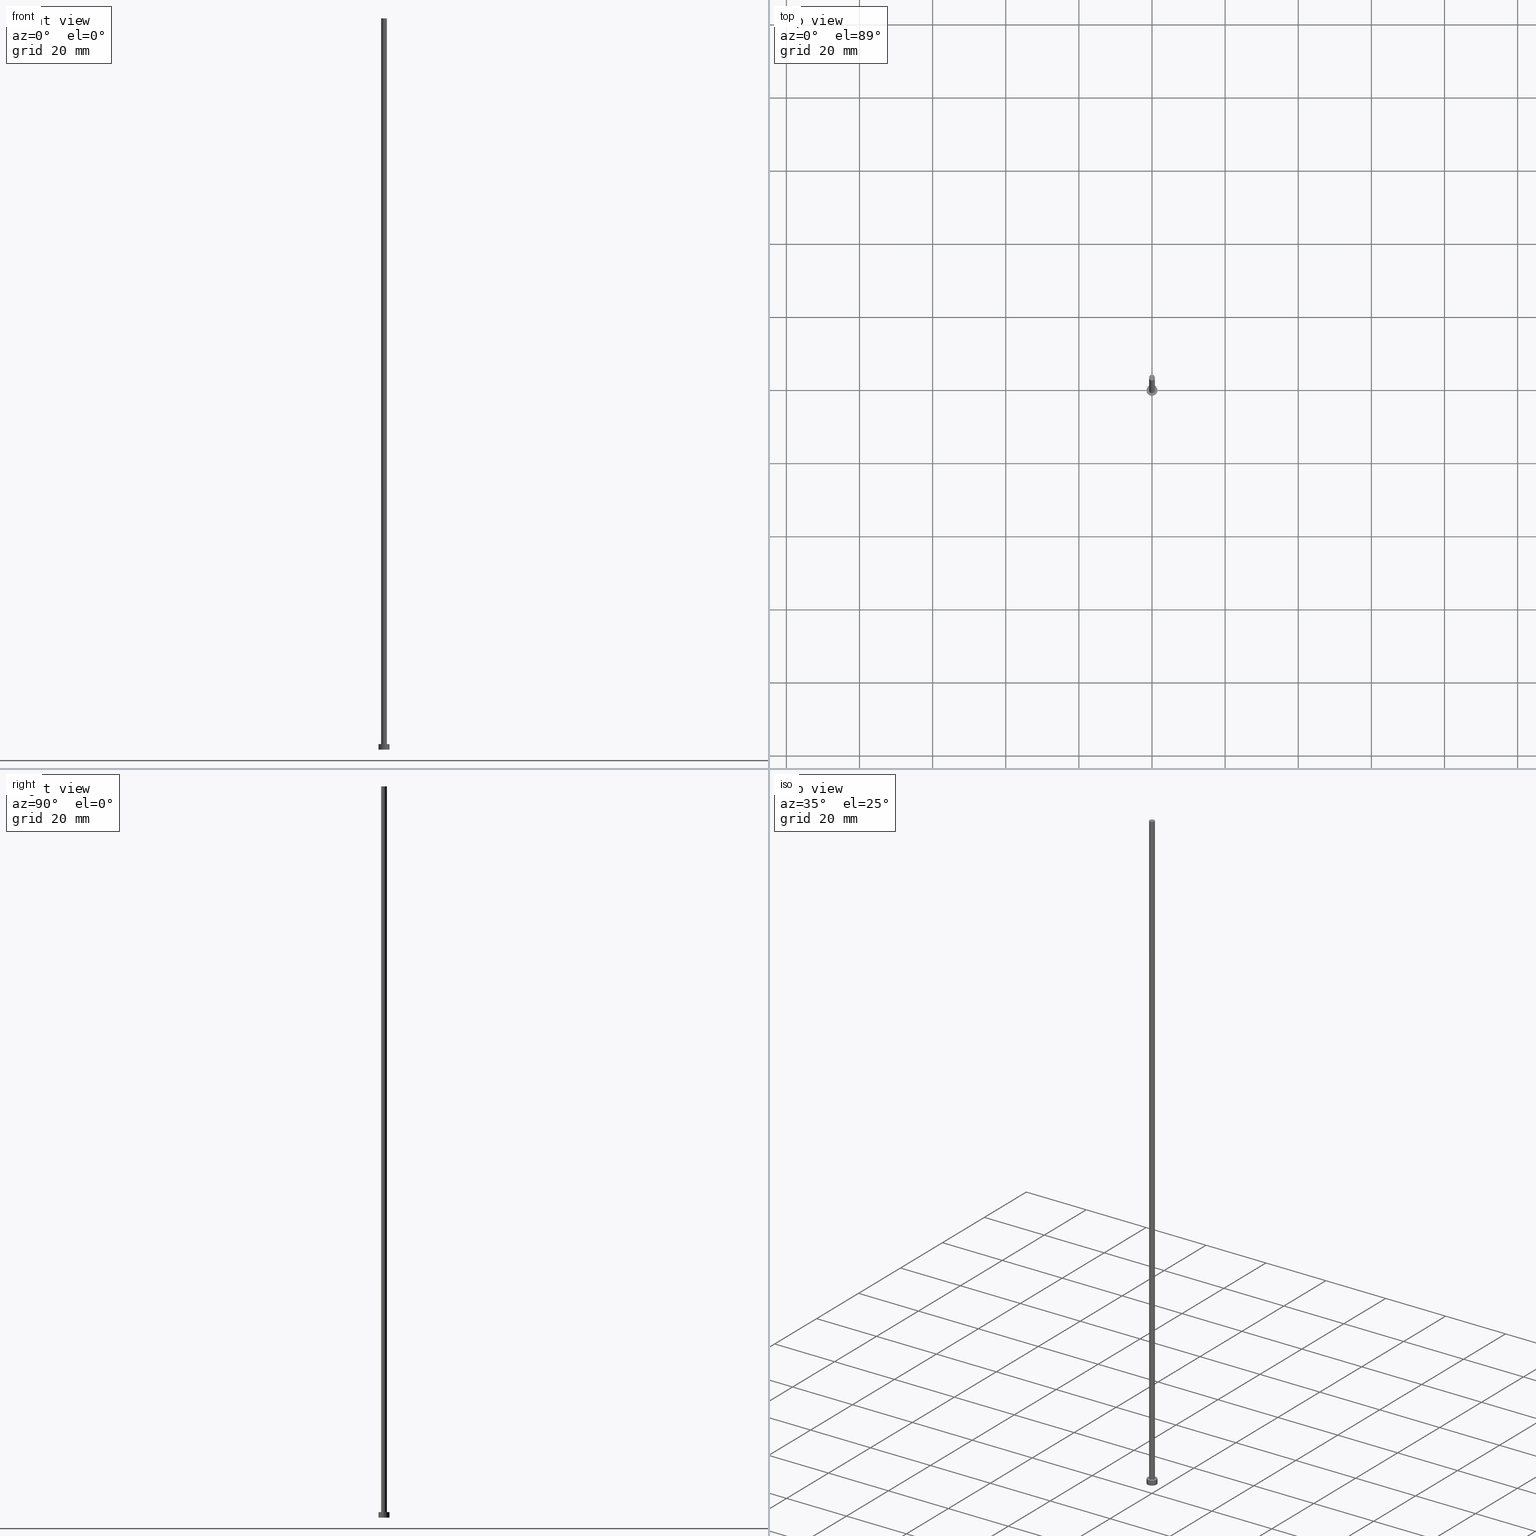
[diagram: canonical four-view strip — front | top / right | iso, engineering-drawing reading convention]
A machine part, canonical four-view strip (front | top / right | iso — engineering-drawing reading convention). The complete STEP part file that produces these views, byte-faithful:
ISO-10303-21;
HEADER;
FILE_DESCRIPTION (( 'STEP AP203' ),
    '1' );
FILE_NAME ('9793.STEP',
    '2026-02-06T12:32:48',
    ( '' ),
    ( '' ),
    'SwSTEP 2.0',
    'SolidWorks 2019',
    '' );
FILE_SCHEMA (( 'CONFIG_CONTROL_DESIGN' ));
ENDSEC;

DATA;
#1 = FACE_BOUND ( 'NONE', #214, .T. ) ;
#2 = ORIENTED_EDGE ( 'NONE', *, *, #227, .F. ) ;
#3 = CARTESIAN_POINT ( 'NONE',  ( 0.000000000000000000, 0.000000000000000000, 200.0000000000000000 ) ) ;
#4 = AXIS2_PLACEMENT_3D ( 'NONE', #51, #141, #254 ) ;
#5 = PERSON_AND_ORGANIZATION_ROLE ( 'design_supplier' ) ;
#6 = APPROVAL_DATE_TIME ( #204, #70 ) ;
#7 = COORDINATED_UNIVERSAL_TIME_OFFSET ( 1, 0, .AHEAD. ) ;
#8 = AXIS2_PLACEMENT_3D ( 'NONE', #137, #20, #217 ) ;
#9 = APPROVAL ( #222, 'NEUR�EN�' ) ;
#10 = PERSON_AND_ORGANIZATION ( #129, #183 ) ;
#11 = CALENDAR_DATE ( 2026, 6, 2 ) ;
#12 =( NAMED_UNIT ( * ) PLANE_ANGLE_UNIT ( ) SI_UNIT ( $, .RADIAN. ) );
#13 = LOCAL_TIME ( 13, 32, 48.00000000000000000, #134 ) ;
#14 = DIRECTION ( 'NONE',  ( 1.000000000000000000, 0.000000000000000000, 0.000000000000000000 ) ) ;
#15 = CIRCLE ( 'NONE', #8, 0.8000000000000000444 ) ;
#16 = EDGE_LOOP ( 'NONE', ( #158, #126, #19, #2 ) ) ;
#17 = CARTESIAN_POINT ( 'NONE',  ( 1.500000000000000222, 1.836970198721030181E-16, 0.000000000000000000 ) ) ;
#18 = EDGE_CURVE ( 'NONE', #106, #42, #170, .T. ) ;
#19 = ORIENTED_EDGE ( 'NONE', *, *, #133, .T. ) ;
#20 = DIRECTION ( 'NONE',  ( 0.000000000000000000, 0.000000000000000000, 1.000000000000000000 ) ) ;
#21 = ORIENTED_EDGE ( 'NONE', *, *, #64, .T. ) ;
#22 = DIRECTION ( 'NONE',  ( 1.000000000000000000, 0.000000000000000000, -0.000000000000000000 ) ) ;
#23 = VECTOR ( 'NONE', #139, 1000.000000000000000 ) ;
#24 = EDGE_LOOP ( 'NONE', ( #97, #211, #189, #38 ) ) ;
#25 = CALENDAR_DATE ( 2026, 6, 2 ) ;
#26 = PERSON_AND_ORGANIZATION ( #129, #183 ) ;
#27 = SECURITY_CLASSIFICATION ( '', '', #46 ) ;
#28 = EDGE_CURVE ( 'NONE', #255, #195, #41, .T. ) ;
#29 = APPROVAL_ROLE ( '' ) ;
#30 = PERSON_AND_ORGANIZATION ( #129, #183 ) ;
#31 = PLANE ( 'NONE',  #117 ) ;
#32 = ORIENTED_EDGE ( 'NONE', *, *, #187, .F. ) ;
#33 = CIRCLE ( 'NONE', #163, 0.8000000000000000444 ) ;
#34 = CARTESIAN_POINT ( 'NONE',  ( -1.500000000000000222, 0.000000000000000000, 1.500000000000000000 ) ) ;
#35 = ADVANCED_FACE ( 'NONE', ( #218 ), #122, .T. ) ;
#36 = VERTEX_POINT ( 'NONE', #173 ) ;
#37 = DIRECTION ( 'NONE',  ( 0.000000000000000000, 0.000000000000000000, 1.000000000000000000 ) ) ;
#38 = ORIENTED_EDGE ( 'NONE', *, *, #113, .T. ) ;
#39 = CARTESIAN_POINT ( 'NONE',  ( -0.8000000000000000444, 0.000000000000000000, 1.500000000000000000 ) ) ;
#40 = AXIS2_PLACEMENT_3D ( 'NONE', #138, #60, #180 ) ;
#41 = LINE ( 'NONE', #80, #118 ) ;
#42 = VERTEX_POINT ( 'NONE', #220 ) ;
#43 = ORIENTED_EDGE ( 'NONE', *, *, #246, .F. ) ;
#44 = CIRCLE ( 'NONE', #167, 1.500000000000000222 ) ;
#45 = CALENDAR_DATE ( 2026, 6, 2 ) ;
#46 = SECURITY_CLASSIFICATION_LEVEL ( 'unclassified' ) ;
#47 = PERSON_AND_ORGANIZATION ( #129, #183 ) ;
#48 = DIRECTION ( 'NONE',  ( 1.000000000000000000, 0.000000000000000000, 0.000000000000000000 ) ) ;
#49 = AXIS2_PLACEMENT_3D ( 'NONE', #145, #95, #251 ) ;
#50 = CC_DESIGN_DATE_AND_TIME_ASSIGNMENT ( #131, #244, ( #27 ) ) ;
#51 = CARTESIAN_POINT ( 'NONE',  ( 0.000000000000000000, 0.000000000000000000, 0.000000000000000000 ) ) ;
#52 = CYLINDRICAL_SURFACE ( 'NONE', #49, 1.500000000000000222 ) ;
#53 = ADVANCED_FACE ( 'NONE', ( #116 ), #125, .T. ) ;
#54 = CARTESIAN_POINT ( 'NONE',  ( 1.500000000000000222, 1.836970198721030181E-16, 1.500000000000000000 ) ) ;
#55 = DIRECTION ( 'NONE',  ( -0.000000000000000000, -0.000000000000000000, -1.000000000000000000 ) ) ;
#56 = CC_DESIGN_APPROVAL ( #70, ( #69 ) ) ;
#57 = DIRECTION ( 'NONE',  ( 1.000000000000000000, 0.000000000000000000, 0.000000000000000000 ) ) ;
#58 = ORIENTED_EDGE ( 'NONE', *, *, #113, .F. ) ;
#59 = DIRECTION ( 'NONE',  ( 0.000000000000000000, 0.000000000000000000, 1.000000000000000000 ) ) ;
#60 = DIRECTION ( 'NONE',  ( -0.000000000000000000, -0.000000000000000000, -1.000000000000000000 ) ) ;
#61 = DIRECTION ( 'NONE',  ( 1.000000000000000000, 0.000000000000000000, 0.000000000000000000 ) ) ;
#62 = CC_DESIGN_APPROVAL ( #9, ( #27 ) ) ;
#63 = APPROVAL ( #203, 'NEUR�EN�' ) ;
#64 = EDGE_CURVE ( 'NONE', #195, #147, #178, .T. ) ;
#65 = COORDINATED_UNIVERSAL_TIME_OFFSET ( 1, 0, .AHEAD. ) ;
#66 = PERSON_AND_ORGANIZATION ( #129, #183 ) ;
#67 = AXIS2_PLACEMENT_3D ( 'NONE', #74, #233, #22 ) ;
#68 = PERSON_AND_ORGANIZATION_ROLE ( 'creator' ) ;
#69 = PRODUCT_DEFINITION_FORMATION_WITH_SPECIFIED_SOURCE ( 'LIBOVOLN�', '', #185, .NOT_KNOWN. ) ;
#70 = APPROVAL ( #242, 'NEUR�EN�' ) ;
#71 = ADVANCED_FACE ( 'NONE', ( #197 ), #52, .T. ) ;
#72 = DIRECTION ( 'NONE',  ( -0.000000000000000000, -0.000000000000000000, -1.000000000000000000 ) ) ;
#73 = LINE ( 'NONE', #156, #101 ) ;
#74 = CARTESIAN_POINT ( 'NONE',  ( 0.000000000000000000, 0.000000000000000000, 0.000000000000000000 ) ) ;
#75 = MANIFOLD_SOLID_BREP ( 'P�idat vysunut�m3', #154 ) ;
#76 = ORIENTED_EDGE ( 'NONE', *, *, #28, .F. ) ;
#77 = AXIS2_PLACEMENT_3D ( 'NONE', #78, #37, #121 ) ;
#78 = CARTESIAN_POINT ( 'NONE',  ( 0.000000000000000000, 0.000000000000000000, 1.500000000000000000 ) ) ;
#79 = EDGE_LOOP ( 'NONE', ( #181, #32, #161, #21 ) ) ;
#80 = CARTESIAN_POINT ( 'NONE',  ( -0.8000000000000000444, 0.000000000000000000, 200.0000000000000000 ) ) ;
#81 = CC_DESIGN_PERSON_AND_ORGANIZATION_ASSIGNMENT ( #26, #201, ( #124 ) ) ;
#82 = DIRECTION ( 'NONE',  ( 0.000000000000000000, 0.000000000000000000, 1.000000000000000000 ) ) ;
#83 = EDGE_CURVE ( 'NONE', #36, #147, #73, .T. ) ;
#84 = EDGE_LOOP ( 'NONE', ( #43, #108, #177, #76 ) ) ;
#85 = APPROVAL_DATE_TIME ( #225, #63 ) ;
#86 = COORDINATED_UNIVERSAL_TIME_OFFSET ( 1, 0, .AHEAD. ) ;
#87 = DATE_AND_TIME ( #45, #249 ) ;
#88 = AXIS2_PLACEMENT_3D ( 'NONE', #96, #176, #174 ) ;
#89 = MECHANICAL_CONTEXT ( 'NONE', #202, 'mechanical' ) ;
#90 = CC_DESIGN_APPROVAL ( #63, ( #124 ) ) ;
#91 = PERSON_AND_ORGANIZATION ( #129, #183 ) ;
#92 =( NAMED_UNIT ( * ) SI_UNIT ( $, .STERADIAN. ) SOLID_ANGLE_UNIT ( ) );
#93 = AXIS2_PLACEMENT_3D ( 'NONE', #228, #169, #48 ) ;
#94 = DIRECTION ( 'NONE',  ( -1.000000000000000000, 0.000000000000000000, 0.000000000000000000 ) ) ;
#95 = DIRECTION ( 'NONE',  ( -0.000000000000000000, -0.000000000000000000, -1.000000000000000000 ) ) ;
#96 = CARTESIAN_POINT ( 'NONE',  ( 0.000000000000000000, 0.000000000000000000, 1.500000000000000000 ) ) ;
#97 = ORIENTED_EDGE ( 'NONE', *, *, #107, .F. ) ;
#98 = CARTESIAN_POINT ( 'NONE',  ( 0.000000000000000000, 0.000000000000000000, 200.0000000000000000 ) ) ;
#99 = EDGE_LOOP ( 'NONE', ( #58, #198 ) ) ;
#100 = APPLICATION_CONTEXT ( 'configuration controlled 3d designs of mechanical parts and assemblies' ) ;
#101 = VECTOR ( 'NONE', #55, 1000.000000000000000 ) ;
#102 = CARTESIAN_POINT ( 'NONE',  ( 0.000000000000000000, 0.000000000000000000, 200.0000000000000000 ) ) ;
#103 = UNCERTAINTY_MEASURE_WITH_UNIT (LENGTH_MEASURE( 1.000000000000000082E-05 ), #152, 'distance_accuracy_value', 'NONE');
#104 = DIRECTION ( 'NONE',  ( -0.000000000000000000, -0.000000000000000000, -1.000000000000000000 ) ) ;
#105 = CC_DESIGN_PERSON_AND_ORGANIZATION_ASSIGNMENT ( #30, #241, ( #27 ) ) ;
#106 = VERTEX_POINT ( 'NONE', #54 ) ;
#107 = EDGE_CURVE ( 'NONE', #106, #237, #157, .T. ) ;
#108 = ORIENTED_EDGE ( 'NONE', *, *, #83, .T. ) ;
#109 = AXIS2_PLACEMENT_3D ( 'NONE', #98, #155, #94 ) ;
#110 = APPROVAL_DATE_TIME ( #111, #9 ) ;
#111 = DATE_AND_TIME ( #135, #234 ) ;
#112 = APPROVAL_PERSON_ORGANIZATION ( #206, #63, #29 ) ;
#113 = EDGE_CURVE ( 'NONE', #235, #237, #223, .T. ) ;
#114 = PRODUCT_DEFINITION_SHAPE ( 'NONE', 'NONE',  #124 ) ;
#115 = DIRECTION ( 'NONE',  ( 1.000000000000000000, 0.000000000000000000, -0.000000000000000000 ) ) ;
#116 = FACE_OUTER_BOUND ( 'NONE', #79, .T. ) ;
#117 = AXIS2_PLACEMENT_3D ( 'NONE', #102, #252, #115 ) ;
#118 = VECTOR ( 'NONE', #216, 1000.000000000000000 ) ;
#119 = CARTESIAN_POINT ( 'NONE',  ( 0.000000000000000000, 0.000000000000000000, 0.000000000000000000 ) ) ;
#120 = ORIENTED_EDGE ( 'NONE', *, *, #64, .F. ) ;
#121 = DIRECTION ( 'NONE',  ( 1.000000000000000000, 0.000000000000000000, -0.000000000000000000 ) ) ;
#122 = CYLINDRICAL_SURFACE ( 'NONE', #40, 1.500000000000000222 ) ;
#123 = DIRECTION ( 'NONE',  ( 0.000000000000000000, 0.000000000000000000, 1.000000000000000000 ) ) ;
#124 = PRODUCT_DEFINITION ( 'NEZN�M�', '', #69, #128 ) ;
#125 = CYLINDRICAL_SURFACE ( 'NONE', #196, 0.8000000000000000444 ) ;
#126 = ORIENTED_EDGE ( 'NONE', *, *, #107, .T. ) ;
#127 = EDGE_CURVE ( 'NONE', #42, #106, #44, .T. ) ;
#128 = DESIGN_CONTEXT ( 'detailed design', #100, 'design' ) ;
#129 = PERSON ( 'NEUR�EN�', 'NEUR�EN�', 'NEUR�EN�', ('NEUR�EN�'), ('NEUR�EN�'), ('NEUR�EN�') ) ;
#130 = SHAPE_DEFINITION_REPRESENTATION ( #114, #226 ) ;
#131 = DATE_AND_TIME ( #11, #247 ) ;
#132 = CIRCLE ( 'NONE', #4, 1.500000000000000222 ) ;
#133 = EDGE_CURVE ( 'NONE', #237, #235, #132, .T. ) ;
#134 = COORDINATED_UNIVERSAL_TIME_OFFSET ( 1, 0, .AHEAD. ) ;
#135 = CALENDAR_DATE ( 2026, 6, 2 ) ;
#136 = CARTESIAN_POINT ( 'NONE',  ( 0.000000000000000000, 0.000000000000000000, 200.0000000000000000 ) ) ;
#137 = CARTESIAN_POINT ( 'NONE',  ( 0.000000000000000000, 0.000000000000000000, 200.0000000000000000 ) ) ;
#138 = CARTESIAN_POINT ( 'NONE',  ( 0.000000000000000000, 0.000000000000000000, 1.500000000000000000 ) ) ;
#139 = DIRECTION ( 'NONE',  ( -0.000000000000000000, -0.000000000000000000, -1.000000000000000000 ) ) ;
#140 = ORIENTED_EDGE ( 'NONE', *, *, #246, .T. ) ;
#141 = DIRECTION ( 'NONE',  ( 0.000000000000000000, 0.000000000000000000, 1.000000000000000000 ) ) ;
#142 = ORIENTED_EDGE ( 'NONE', *, *, #239, .F. ) ;
#143 = FACE_OUTER_BOUND ( 'NONE', #230, .T. ) ;
#144 = CARTESIAN_POINT ( 'NONE',  ( 0.000000000000000000, 0.000000000000000000, 1.500000000000000000 ) ) ;
#145 = CARTESIAN_POINT ( 'NONE',  ( 0.000000000000000000, 0.000000000000000000, 1.500000000000000000 ) ) ;
#146 = LOCAL_TIME ( 13, 32, 48.00000000000000000, #149 ) ;
#147 = VERTEX_POINT ( 'NONE', #192 ) ;
#148 = ORIENTED_EDGE ( 'NONE', *, *, #127, .T. ) ;
#149 = COORDINATED_UNIVERSAL_TIME_OFFSET ( 1, 0, .AHEAD. ) ;
#150 = DATE_TIME_ROLE ( 'creation_date' ) ;
#151 = ADVANCED_FACE ( 'NONE', ( #236 ), #194, .F. ) ;
#152 =( LENGTH_UNIT ( ) NAMED_UNIT ( * ) SI_UNIT ( .MILLI., .METRE. ) );
#153 = APPROVAL_ROLE ( '' ) ;
#154 = CLOSED_SHELL ( 'NONE', ( #199, #71, #35, #172, #151, #53, #166 ) ) ;
#155 = DIRECTION ( 'NONE',  ( -0.000000000000000000, -0.000000000000000000, -1.000000000000000000 ) ) ;
#156 = CARTESIAN_POINT ( 'NONE',  ( 0.8000000000000000444, 9.797174393178826150E-17, 200.0000000000000000 ) ) ;
#157 = LINE ( 'NONE', #210, #23 ) ;
#158 = ORIENTED_EDGE ( 'NONE', *, *, #18, .F. ) ;
#159 = CC_DESIGN_SECURITY_CLASSIFICATION ( #27, ( #69 ) ) ;
#160 = DIRECTION ( 'NONE',  ( 1.000000000000000000, 0.000000000000000000, 0.000000000000000000 ) ) ;
#161 = ORIENTED_EDGE ( 'NONE', *, *, #28, .T. ) ;
#162 = CIRCLE ( 'NONE', #88, 0.8000000000000000444 ) ;
#163 = AXIS2_PLACEMENT_3D ( 'NONE', #136, #207, #14 ) ;
#164 = PERSON_AND_ORGANIZATION ( #129, #183 ) ;
#165 = APPROVAL_ROLE ( '' ) ;
#166 = ADVANCED_FACE ( 'NONE', ( #143 ), #31, .T. ) ;
#167 = AXIS2_PLACEMENT_3D ( 'NONE', #250, #59, #57 ) ;
#168 = CC_DESIGN_PERSON_AND_ORGANIZATION_ASSIGNMENT ( #164, #68, ( #69 ) ) ;
#169 = DIRECTION ( 'NONE',  ( 0.000000000000000000, 0.000000000000000000, 1.000000000000000000 ) ) ;
#170 = CIRCLE ( 'NONE', #208, 1.500000000000000222 ) ;
#171 = LINE ( 'NONE', #34, #188 ) ;
#172 = ADVANCED_FACE ( 'NONE', ( #1, #212 ), #215, .T. ) ;
#173 = CARTESIAN_POINT ( 'NONE',  ( 0.8000000000000000444, 9.797174393178826150E-17, 200.0000000000000000 ) ) ;
#174 = DIRECTION ( 'NONE',  ( 1.000000000000000000, 0.000000000000000000, 0.000000000000000000 ) ) ;
#175 = ORIENTED_EDGE ( 'NONE', *, *, #18, .T. ) ;
#176 = DIRECTION ( 'NONE',  ( 0.000000000000000000, 0.000000000000000000, 1.000000000000000000 ) ) ;
#177 = ORIENTED_EDGE ( 'NONE', *, *, #239, .T. ) ;
#178 = CIRCLE ( 'NONE', #240, 0.8000000000000000444 ) ;
#179 = DIRECTION ( 'NONE',  ( -1.000000000000000000, 0.000000000000000000, 0.000000000000000000 ) ) ;
#180 = DIRECTION ( 'NONE',  ( -1.000000000000000000, 0.000000000000000000, 0.000000000000000000 ) ) ;
#181 = ORIENTED_EDGE ( 'NONE', *, *, #83, .F. ) ;
#182 =( GEOMETRIC_REPRESENTATION_CONTEXT ( 3 ) GLOBAL_UNCERTAINTY_ASSIGNED_CONTEXT ( ( #103 ) ) GLOBAL_UNIT_ASSIGNED_CONTEXT ( ( #152, #12, #92 ) ) REPRESENTATION_CONTEXT ( 'NONE', 'WORKASPACE' ) );
#183 = ORGANIZATION ( 'NEUR�EN�', 'NEUR�EN�', '' ) ;
#184 = CARTESIAN_POINT ( 'NONE',  ( -0.8000000000000000444, 0.000000000000000000, 200.0000000000000000 ) ) ;
#185 = PRODUCT ( '9793', '9793', '', ( #89 ) ) ;
#186 = FACE_OUTER_BOUND ( 'NONE', #84, .T. ) ;
#187 = EDGE_CURVE ( 'NONE', #255, #36, #15, .T. ) ;
#188 = VECTOR ( 'NONE', #72, 1000.000000000000000 ) ;
#189 = ORIENTED_EDGE ( 'NONE', *, *, #227, .T. ) ;
#190 = CYLINDRICAL_SURFACE ( 'NONE', #109, 0.8000000000000000444 ) ;
#191 = EDGE_LOOP ( 'NONE', ( #148, #175 ) ) ;
#192 = CARTESIAN_POINT ( 'NONE',  ( 0.8000000000000000444, 9.797174393178826150E-17, 1.500000000000000000 ) ) ;
#193 = CARTESIAN_POINT ( 'NONE',  ( 0.000000000000000000, 0.000000000000000000, 1.500000000000000000 ) ) ;
#194 = PLANE ( 'NONE',  #67 ) ;
#195 = VERTEX_POINT ( 'NONE', #39 ) ;
#196 = AXIS2_PLACEMENT_3D ( 'NONE', #3, #104, #179 ) ;
#197 = FACE_OUTER_BOUND ( 'NONE', #16, .T. ) ;
#198 = ORIENTED_EDGE ( 'NONE', *, *, #133, .F. ) ;
#199 = ADVANCED_FACE ( 'NONE', ( #186 ), #190, .T. ) ;
#200 = APPROVAL_PERSON_ORGANIZATION ( #66, #9, #153 ) ;
#201 = PERSON_AND_ORGANIZATION_ROLE ( 'creator' ) ;
#202 = APPLICATION_CONTEXT ( 'configuration controlled 3d designs of mechanical parts and assemblies' ) ;
#203 = APPROVAL_STATUS ( 'not_yet_approved' ) ;
#204 = DATE_AND_TIME ( #25, #146 ) ;
#205 = CALENDAR_DATE ( 2026, 6, 2 ) ;
#206 = PERSON_AND_ORGANIZATION ( #129, #183 ) ;
#207 = DIRECTION ( 'NONE',  ( 0.000000000000000000, 0.000000000000000000, 1.000000000000000000 ) ) ;
#208 = AXIS2_PLACEMENT_3D ( 'NONE', #144, #82, #232 ) ;
#209 = CC_DESIGN_DATE_AND_TIME_ASSIGNMENT ( #87, #150, ( #124 ) ) ;
#210 = CARTESIAN_POINT ( 'NONE',  ( 1.500000000000000222, 1.836970198721030181E-16, 1.500000000000000000 ) ) ;
#211 = ORIENTED_EDGE ( 'NONE', *, *, #127, .F. ) ;
#212 = FACE_OUTER_BOUND ( 'NONE', #191, .T. ) ;
#213 = APPROVAL_PERSON_ORGANIZATION ( #10, #70, #165 ) ;
#214 = EDGE_LOOP ( 'NONE', ( #120, #142 ) ) ;
#215 = PLANE ( 'NONE',  #77 ) ;
#216 = DIRECTION ( 'NONE',  ( -0.000000000000000000, -0.000000000000000000, -1.000000000000000000 ) ) ;
#217 = DIRECTION ( 'NONE',  ( 1.000000000000000000, 0.000000000000000000, 0.000000000000000000 ) ) ;
#218 = FACE_OUTER_BOUND ( 'NONE', #24, .T. ) ;
#219 = PRODUCT_RELATED_PRODUCT_CATEGORY ( 'detail', '', ( #185 ) ) ;
#220 = CARTESIAN_POINT ( 'NONE',  ( -1.500000000000000222, 0.000000000000000000, 1.500000000000000000 ) ) ;
#221 = CC_DESIGN_PERSON_AND_ORGANIZATION_ASSIGNMENT ( #91, #229, ( #185 ) ) ;
#222 = APPROVAL_STATUS ( 'not_yet_approved' ) ;
#223 = CIRCLE ( 'NONE', #243, 1.500000000000000222 ) ;
#224 = APPLICATION_PROTOCOL_DEFINITION ( 'international standard', 'config_control_design', 1994, #100 ) ;
#225 = DATE_AND_TIME ( #205, #13 ) ;
#226 = ADVANCED_BREP_SHAPE_REPRESENTATION ( '9793', ( #75, #93 ), #182 ) ;
#227 = EDGE_CURVE ( 'NONE', #42, #235, #171, .T. ) ;
#228 = CARTESIAN_POINT ( 'NONE',  ( 0.000000000000000000, 0.000000000000000000, 0.000000000000000000 ) ) ;
#229 = PERSON_AND_ORGANIZATION_ROLE ( 'design_owner' ) ;
#230 = EDGE_LOOP ( 'NONE', ( #253, #140 ) ) ;
#231 = CARTESIAN_POINT ( 'NONE',  ( -1.500000000000000222, 0.000000000000000000, 0.000000000000000000 ) ) ;
#232 = DIRECTION ( 'NONE',  ( 1.000000000000000000, 0.000000000000000000, 0.000000000000000000 ) ) ;
#233 = DIRECTION ( 'NONE',  ( 0.000000000000000000, 0.000000000000000000, 1.000000000000000000 ) ) ;
#234 = LOCAL_TIME ( 13, 32, 48.00000000000000000, #65 ) ;
#235 = VERTEX_POINT ( 'NONE', #231 ) ;
#236 = FACE_OUTER_BOUND ( 'NONE', #99, .T. ) ;
#237 = VERTEX_POINT ( 'NONE', #17 ) ;
#238 = DIRECTION ( 'NONE',  ( 0.000000000000000000, 0.000000000000000000, 1.000000000000000000 ) ) ;
#239 = EDGE_CURVE ( 'NONE', #147, #195, #162, .T. ) ;
#240 = AXIS2_PLACEMENT_3D ( 'NONE', #193, #238, #61 ) ;
#241 = PERSON_AND_ORGANIZATION_ROLE ( 'classification_officer' ) ;
#242 = APPROVAL_STATUS ( 'not_yet_approved' ) ;
#243 = AXIS2_PLACEMENT_3D ( 'NONE', #119, #123, #160 ) ;
#244 = DATE_TIME_ROLE ( 'classification_date' ) ;
#245 = CC_DESIGN_PERSON_AND_ORGANIZATION_ASSIGNMENT ( #47, #5, ( #69 ) ) ;
#246 = EDGE_CURVE ( 'NONE', #36, #255, #33, .T. ) ;
#247 = LOCAL_TIME ( 13, 32, 48.00000000000000000, #86 ) ;
#248 = APPLICATION_PROTOCOL_DEFINITION ( 'international standard', 'config_control_design', 1994, #202 ) ;
#249 = LOCAL_TIME ( 13, 32, 48.00000000000000000, #7 ) ;
#250 = CARTESIAN_POINT ( 'NONE',  ( 0.000000000000000000, 0.000000000000000000, 1.500000000000000000 ) ) ;
#251 = DIRECTION ( 'NONE',  ( -1.000000000000000000, 0.000000000000000000, 0.000000000000000000 ) ) ;
#252 = DIRECTION ( 'NONE',  ( 0.000000000000000000, 0.000000000000000000, 1.000000000000000000 ) ) ;
#253 = ORIENTED_EDGE ( 'NONE', *, *, #187, .T. ) ;
#254 = DIRECTION ( 'NONE',  ( 1.000000000000000000, 0.000000000000000000, 0.000000000000000000 ) ) ;
#255 = VERTEX_POINT ( 'NONE', #184 ) ;
ENDSEC;
END-ISO-10303-21;
